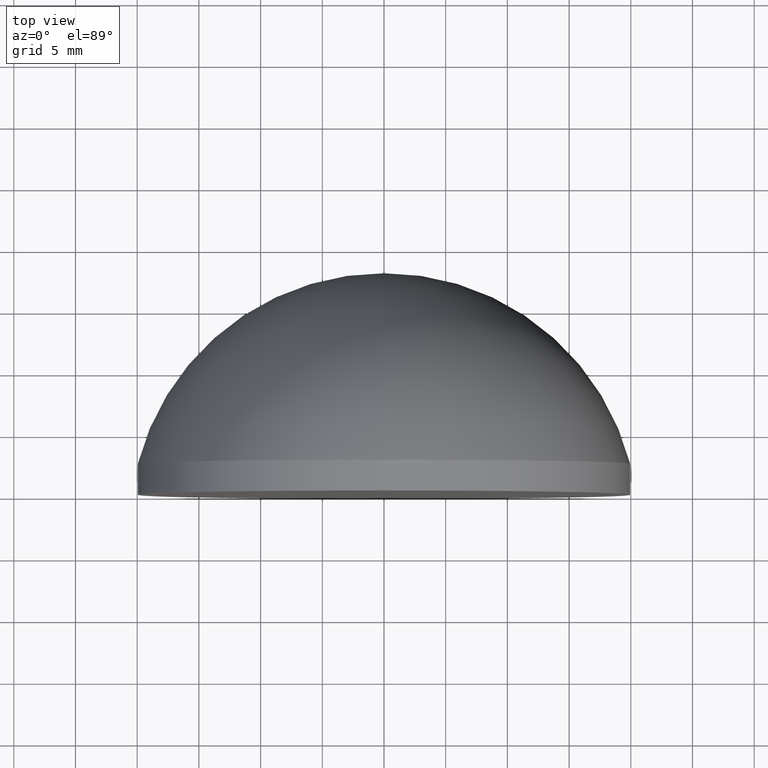
[diagram: clean part render]
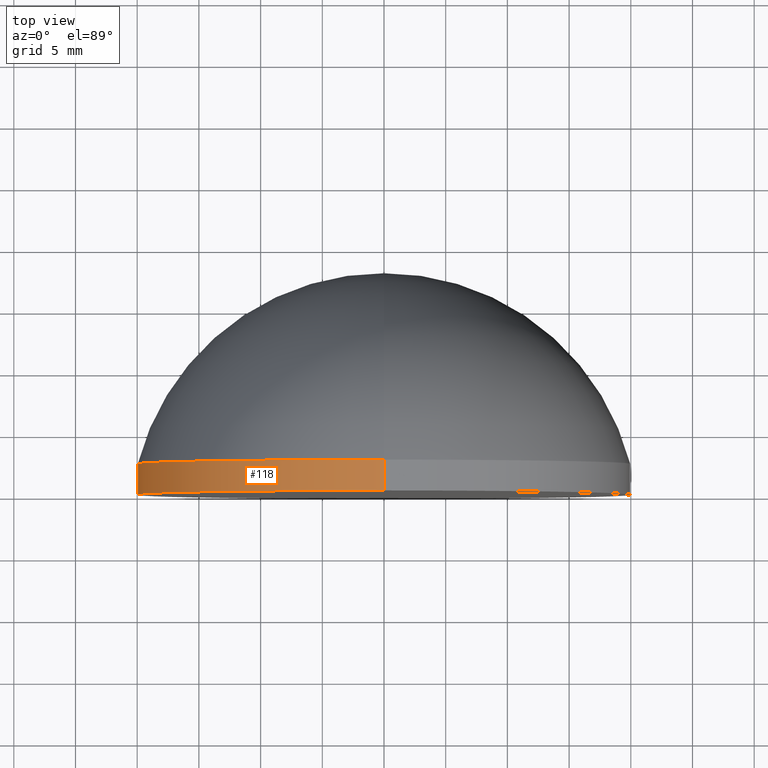
[diagram: same view with one face highlighted and labeled with its STEP entity id]
A machine part, top view. The second image highlights one B-rep face of the part: STEP entity #118.
In plain terms, the highlighted cylindrical surface (partial cylindrical patch) has radius 20 mm, axis along (-0, 1, -0).
Its self-contained STEP definition (entity closure, byte-faithful):
#7 = ORIENTED_EDGE ( 'NONE', *, *, #189, .F. ) ;
#12 = CARTESIAN_POINT ( 'NONE',  ( 0.000000000000000000, -3.469446951953614189E-15, 0.000000000000000000 ) ) ;
#18 = FACE_OUTER_BOUND ( 'NONE', #123, .T. ) ;
#30 = CARTESIAN_POINT ( 'NONE',  ( 0.000000000000000000, 2.499999999999996447, 20.00000000000000355 ) ) ;
#34 = VECTOR ( 'NONE', #61, 1000.000000000000000 ) ;
#42 = LINE ( 'NONE', #106, #129 ) ;
#45 = DIRECTION ( 'NONE',  ( 0.000000000000000000, 0.000000000000000000, 1.000000000000000000 ) ) ;
#60 = CARTESIAN_POINT ( 'NONE',  ( 0.000000000000000000, -3.469446951953614189E-15, 20.00000000000000000 ) ) ;
#61 = DIRECTION ( 'NONE',  ( -0.000000000000000000, 1.000000000000000000, -0.000000000000000000 ) ) ;
#64 = DIRECTION ( 'NONE',  ( -0.000000000000000000, 1.000000000000000000, -0.000000000000000000 ) ) ;
#72 = VERTEX_POINT ( 'NONE', #30 ) ;
#77 = CARTESIAN_POINT ( 'NONE',  ( 0.000000000000000000, 17.94999999999999929, 20.00000000000000000 ) ) ;
#78 = CARTESIAN_POINT ( 'NONE',  ( 2.449293598294706513E-15, 2.499999999999996447, -20.00000000000000355 ) ) ;
#79 = CARTESIAN_POINT ( 'NONE',  ( 2.449293598294706513E-15, -3.469446951953614189E-15, -20.00000000000000000 ) ) ;
#81 = AXIS2_PLACEMENT_3D ( 'NONE', #90, #105, #45 ) ;
#83 = AXIS2_PLACEMENT_3D ( 'NONE', #185, #91, #201 ) ;
#85 = ORIENTED_EDGE ( 'NONE', *, *, #101, .T. ) ;
#90 = CARTESIAN_POINT ( 'NONE',  ( 0.000000000000000000, 17.94999999999999929, 0.000000000000000000 ) ) ;
#91 = DIRECTION ( 'NONE',  ( -0.000000000000000000, 1.000000000000000000, -0.000000000000000000 ) ) ;
#93 = VERTEX_POINT ( 'NONE', #78 ) ;
#97 = VERTEX_POINT ( 'NONE', #60 ) ;
#101 = EDGE_CURVE ( 'NONE', #150, #97, #177, .T. ) ;
#102 = DIRECTION ( 'NONE',  ( -0.000000000000000000, 1.000000000000000000, -0.000000000000000000 ) ) ;
#105 = DIRECTION ( 'NONE',  ( -0.000000000000000000, 1.000000000000000000, -0.000000000000000000 ) ) ;
#106 = CARTESIAN_POINT ( 'NONE',  ( 2.449293598294706513E-15, 17.94999999999999929, -20.00000000000000000 ) ) ;
#111 = AXIS2_PLACEMENT_3D ( 'NONE', #12, #64, #200 ) ;
#118 = ADVANCED_FACE ( 'NONE', ( #18 ), #186, .T. ) ;
#123 = EDGE_LOOP ( 'NONE', ( #194, #85, #133, #7 ) ) ;
#129 = VECTOR ( 'NONE', #102, 1000.000000000000000 ) ;
#133 = ORIENTED_EDGE ( 'NONE', *, *, #178, .T. ) ;
#139 = LINE ( 'NONE', #77, #34 ) ;
#150 = VERTEX_POINT ( 'NONE', #79 ) ;
#156 = EDGE_CURVE ( 'NONE', #150, #93, #42, .T. ) ;
#172 = CIRCLE ( 'NONE', #83, 20.00000000000000000 ) ;
#177 = CIRCLE ( 'NONE', #111, 20.00000000000000000 ) ;
#178 = EDGE_CURVE ( 'NONE', #97, #72, #139, .T. ) ;
#185 = CARTESIAN_POINT ( 'NONE',  ( 0.000000000000000000, 2.499999999999996891, 0.000000000000000000 ) ) ;
#186 = CYLINDRICAL_SURFACE ( 'NONE', #81, 20.00000000000000000 ) ;
#189 = EDGE_CURVE ( 'NONE', #93, #72, #172, .T. ) ;
#194 = ORIENTED_EDGE ( 'NONE', *, *, #156, .F. ) ;
#200 = DIRECTION ( 'NONE',  ( 0.000000000000000000, 0.000000000000000000, 1.000000000000000000 ) ) ;
#201 = DIRECTION ( 'NONE',  ( 0.000000000000000000, 0.000000000000000000, 1.000000000000000000 ) ) ;